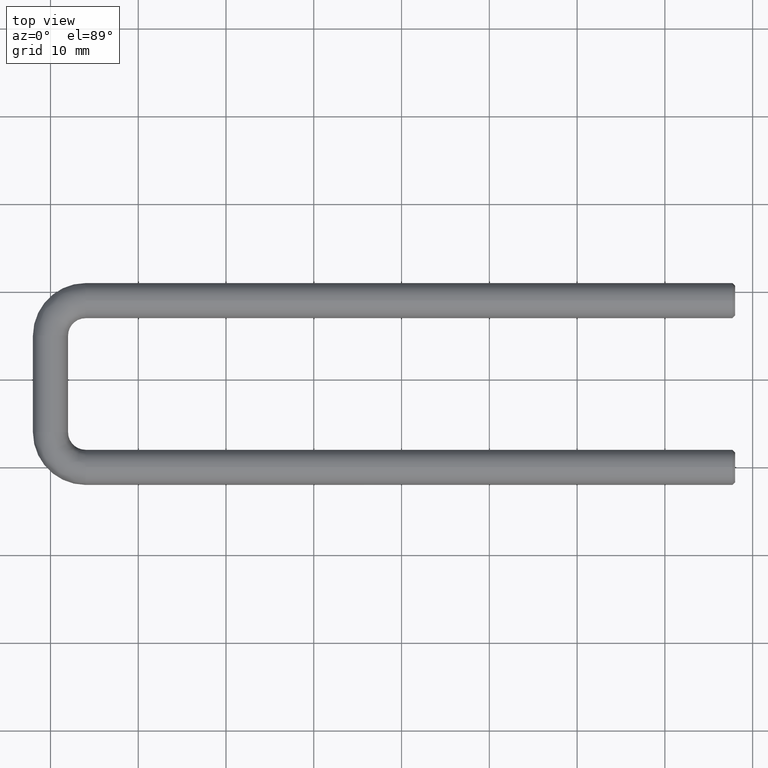
[diagram: clean part render]
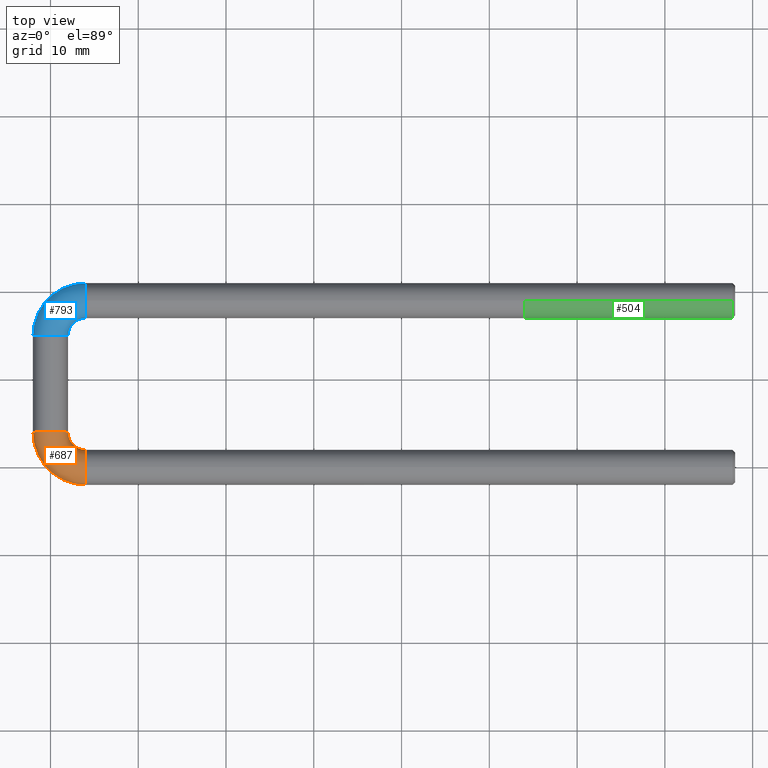
[diagram: same view with three faces highlighted in distinct colors, each labeled with its STEP entity id]
A machine part, top view with three faces highlighted in distinct colors.
Their STEP definitions:

[orange] entity #687 — the highlighted face is a freeform B-spline surface patch.
#1 = CARTESIAN_POINT ( 'NONE',  ( 4.000000000000000000, 1.266674852000000000, 2.000000000000000000 ) ) ;
#25 = CARTESIAN_POINT ( 'NONE',  ( 0.9148532999999999800, -1.266674851999999700, 2.000000000000000000 ) ) ;
#37 = CARTESIAN_POINT ( 'NONE',  ( -2.116464808999999600, 4.000000000000000000, 1.060679921000000200 ) ) ;
#41 = CARTESIAN_POINT ( 'NONE',  ( -2.116464808999999600, 0.4170578690000000800, 1.060679921000000200 ) ) ;
#47 = CARTESIAN_POINT ( 'NONE',  ( 0.4170578690000000800, -2.116464808999999600, 1.060679921000000200 ) ) ;
#51 = CARTESIAN_POINT ( 'NONE',  ( 3.999999999999999100, 3.999999999999999100, 2.592631739343659300E-009 ) ) ;
#53 = CARTESIAN_POINT ( 'NONE',  ( 2.116464808999999600, 2.896650629999999000, 1.060679921000000200 ) ) ;
#54 = CARTESIAN_POINT ( 'NONE',  ( 4.000000000000000000, -2.116464808999999600, 1.060679921000000200 ) ) ;
#55 = DIRECTION ( 'NONE',  ( 6.467319687690009700E-017, 6.467319687690009700E-017, -1.000000000000000000 ) ) ;
#56 = AXIS2_PLACEMENT_3D ( 'NONE', #69, #541, #789 ) ;
#62 = DIRECTION ( 'NONE',  ( -1.000000000000000000, 0.0000000000000000000, -6.467319678268286500E-017 ) ) ;
#66 = FACE_OUTER_BOUND ( 'NONE', #78, .T. ) ;
#69 = CARTESIAN_POINT ( 'NONE',  ( 0.0000000000000000000, 4.000000000000000000, 0.0000000000000000000 ) ) ;
#78 = EDGE_LOOP ( 'NONE', ( #266, #265, #274, #253, #173, #213 ) ) ;
#86 = VERTEX_POINT ( 'NONE', #422 ) ;
#93 = CARTESIAN_POINT ( 'NONE',  ( 0.4911343590000000800, -1.990008330999999900, -0.1996668330000000200 ) ) ;
#98 = CARTESIAN_POINT ( 'NONE',  ( 4.000000000000000000, -1.266674852000000000, 2.000000000000000000 ) ) ;
#100 = CARTESIAN_POINT ( 'NONE',  ( 2.449293598294706400E-016, 4.000000000000000000, 1.999999999999995300 ) ) ;
#102 = DIRECTION ( 'NONE',  ( -1.878093646019437100E-017, -1.878093646019437100E-017, 1.000000000000000000 ) ) ;
#103 = AXIS2_PLACEMENT_3D ( 'NONE', #51, #55, #62 ) ;
#138 = DIRECTION ( 'NONE',  ( -1.000000000000000000, -0.0000000000000000000, -0.0000000000000000000 ) ) ;
#150 = CARTESIAN_POINT ( 'NONE',  ( 1.266674851999999700, 2.398855198999998900, 2.000000000000000000 ) ) ;
#153 = CARTESIAN_POINT ( 'NONE',  ( -2.000000000099083400, 4.000000000000000000, 3.284779882328786500E-011 ) ) ;
#161 = VERTEX_POINT ( 'NONE', #465 ) ;
#171 = EDGE_CURVE ( 'NONE', #161, #86, #682, .T. ) ;
#173 = ORIENTED_EDGE ( 'NONE', *, *, #673, .T. ) ;
#183 = CARTESIAN_POINT ( 'NONE',  ( 1.990008331000000100, 4.000000000000000000, -0.1996668330000000400 ) ) ;
#196 = CARTESIAN_POINT ( 'NONE',  ( 0.0000000000000000000, 1.656854248999999800, 1.999999999999999800 ) ) ;
#213 = ORIENTED_EDGE ( 'NONE', *, *, #171, .T. ) ;
#240 = DIRECTION ( 'NONE',  ( 0.0000000000000000000, 8.881784197001252300E-016, -1.000000000000000000 ) ) ;
#245 = CARTESIAN_POINT ( 'NONE',  ( 0.0000000000000000000, 4.000000000000000000, 2.000000000000000000 ) ) ;
#253 = ORIENTED_EDGE ( 'NONE', *, *, #648, .T. ) ;
#265 = ORIENTED_EDGE ( 'NONE', *, *, #376, .T. ) ;
#266 = ORIENTED_EDGE ( 'NONE', *, *, #295, .T. ) ;
#274 = ORIENTED_EDGE ( 'NONE', *, *, #732, .T. ) ;
#278 = AXIS2_PLACEMENT_3D ( 'NONE', #403, #402, #547 ) ;
#290 = CARTESIAN_POINT ( 'NONE',  ( 4.000000000000000000, -1.990008331000000100, -0.1996668330000000400 ) ) ;
#295 = EDGE_CURVE ( 'NONE', #86, #438, #765, .T. ) ;
#306 = CARTESIAN_POINT ( 'NONE',  ( -1.266674852000000000, 4.000000000000000000, 2.000000000000000000 ) ) ;
#313 = CARTESIAN_POINT ( 'NONE',  ( -1.990008330999999900, 0.4911343590000000800, -0.1996668330000000200 ) ) ;
#325 = VERTEX_POINT ( 'NONE', #100 ) ;
#329 = CARTESIAN_POINT ( 'NONE',  ( -1.990008331000000100, 4.000000000000000000, -0.1996668330000000400 ) ) ;
#360 = DIRECTION ( 'NONE',  ( 1.000000000000000000, 0.0000000000000000000, 0.0000000000000000000 ) ) ;
#367 = DIRECTION ( 'NONE',  ( 0.0000000000000000000, -1.000000000000000000, 0.0000000000000000000 ) ) ;
#369 = CARTESIAN_POINT ( 'NONE',  ( 0.0000000000000000000, 4.000000000000000000, 0.0000000000000000000 ) ) ;
#376 = EDGE_CURVE ( 'NONE', #438, #325, #623, .T. ) ;
#398 = CARTESIAN_POINT ( 'NONE',  ( 1.656854248999999800, 0.0000000000000000000, 1.999999999999999800 ) ) ;
#402 = DIRECTION ( 'NONE',  ( -1.000000000000000000, -0.0000000000000000000, -0.0000000000000000000 ) ) ;
#403 = CARTESIAN_POINT ( 'NONE',  ( 3.999999999999996400, 0.0000000000000000000, 0.0000000000000000000 ) ) ;
#407 = CARTESIAN_POINT ( 'NONE',  ( 4.000000000000000000, 1.990008331000000100, -0.1996668330000000400 ) ) ;
#422 = CARTESIAN_POINT ( 'NONE',  ( 3.999999999999989800, 2.000000000000000000, 2.047254014255795300E-009 ) ) ;
#438 = VERTEX_POINT ( 'NONE', #734 ) ;
#442 = CARTESIAN_POINT ( 'NONE',  ( 2.398855198999998900, 1.266674851999999700, 2.000000000000000000 ) ) ;
#462 = CARTESIAN_POINT ( 'NONE',  ( 2.822574139999999500, 1.990008330999999900, -0.1996668330000000200 ) ) ;
#464 = CARTESIAN_POINT ( 'NONE',  ( 2.116464808999999600, 4.000000000000000000, 1.060679921000000200 ) ) ;
#465 = CARTESIAN_POINT ( 'NONE',  ( 3.999999999999996400, 0.0000000000000000000, 2.000000000000000000 ) ) ;
#491 = AXIS2_PLACEMENT_3D ( 'NONE', #369, #367, #360 ) ;
#510 = VERTEX_POINT ( 'NONE', #661 ) ;
#515 = VERTEX_POINT ( 'NONE', #153 ) ;
#521 = CARTESIAN_POINT ( 'NONE',  ( -1.266674851999999700, 0.9148532999999999800, 2.000000000000000000 ) ) ;
#527 = CARTESIAN_POINT ( 'NONE',  ( 3.999999999999996400, 0.0000000000000000000, 0.0000000000000000000 ) ) ;
#528 = CARTESIAN_POINT ( 'NONE',  ( 4.000000000000000000, 2.116464808999999600, 1.060679921000000200 ) ) ;
#541 = DIRECTION ( 'NONE',  ( 0.0000000000000000000, -1.000000000000000000, 0.0000000000000000000 ) ) ;
#542 = DIRECTION ( 'NONE',  ( 1.000000000000000000, 0.0000000000000000000, 1.878093648371326100E-017 ) ) ;
#547 = DIRECTION ( 'NONE',  ( 0.0000000000000000000, 8.881784197001252300E-016, -1.000000000000000000 ) ) ;
#596 = AXIS2_PLACEMENT_3D ( 'NONE', #527, #138, #240 ) ;
#599 = CIRCLE ( 'NONE', #56, 2.000000000000000000 ) ;
#611 = CIRCLE ( 'NONE', #647, 6.000000000396334500 ) ;
#623 = CIRCLE ( 'NONE', #491, 2.000000000000000000 ) ;
#647 = AXIS2_PLACEMENT_3D ( 'NONE', #747, #102, #542 ) ;
#648 = EDGE_CURVE ( 'NONE', #515, #510, #611, .T. ) ;
#656 = CARTESIAN_POINT ( 'NONE',  ( 4.000000000000000000, 0.0000000000000000000, 2.000000000000000000 ) ) ;
#660 =( BOUNDED_SURFACE ( )  B_SPLINE_SURFACE ( 3, 3, ( 
 ( #290, #93, #313, #329 ),
 ( #54, #47, #41, #37 ),
 ( #98, #25, #521, #306 ),
 ( #656, #398, #196, #245 ),
 ( #1, #442, #150, #752 ),
 ( #528, #820, #53, #464 ),
 ( #407, #462, #663, #183 ) ),
 .UNSPECIFIED., .F., .F., .F. ) 
 B_SPLINE_SURFACE_WITH_KNOTS ( ( 4, 3, 4 ),
 ( 4, 4 ),
 ( 0.0000000000000000000, 0.5000000000000000000, 1.000000000000000000 ),
 ( 0.0000000000000000000, 1.000000000000000000 ),
 .UNSPECIFIED. ) 
 GEOMETRIC_REPRESENTATION_ITEM ( )  RATIONAL_B_SPLINE_SURFACE ( (
 ( 1.000000000000000000, 0.8047378541243650500, 0.8047378541243650500, 1.000000000000000000),
 ( 0.7805883148851628900, 0.6281689654752399300, 0.6281689654752399300, 0.7805883148851628900),
 ( 0.7805883148851628900, 0.6281689654752399300, 0.6281689654752399300, 0.7805883148851628900),
 ( 1.000000000000000000, 0.8047378541243650500, 0.8047378541243650500, 1.000000000000000000),
 ( 0.7805883148851628900, 0.6281689654752399300, 0.6281689654752399300, 0.7805883148851628900),
 ( 0.7805883148851628900, 0.6281689654752399300, 0.6281689654752399300, 0.7805883148851628900),
 ( 1.000000000000000000, 0.8047378541243650500, 0.8047378541243650500, 1.000000000000000000) ) ) 
 REPRESENTATION_ITEM ( '' )  SURFACE ( )  );
#661 = CARTESIAN_POINT ( 'NONE',  ( 3.999999999999989800, -2.000000000000000000, 1.681234876209540000E-009 ) ) ;
#663 = CARTESIAN_POINT ( 'NONE',  ( 1.990008330999999900, 2.822574139999999500, -0.1996668330000000200 ) ) ;
#673 = EDGE_CURVE ( 'NONE', #510, #161, #691, .T. ) ;
#682 = CIRCLE ( 'NONE', #278, 2.000000000000000000 ) ;
#687 = ADVANCED_FACE ( 'NONE', ( #66 ), #660, .T. ) ;
#691 = CIRCLE ( 'NONE', #596, 2.000000000000000000 ) ;
#732 = EDGE_CURVE ( 'NONE', #325, #515, #599, .T. ) ;
#734 = CARTESIAN_POINT ( 'NONE',  ( 2.000000000099083000, 4.000000000000000000, 5.583642740705833200E-010 ) ) ;
#747 = CARTESIAN_POINT ( 'NONE',  ( 4.000000000000000000, 4.000000000000000000, 2.592632450162744400E-009 ) ) ;
#752 = CARTESIAN_POINT ( 'NONE',  ( 1.266674852000000000, 4.000000000000000000, 2.000000000000000000 ) ) ;
#765 = CIRCLE ( 'NONE', #103, 1.999999999603665900 ) ;
#789 = DIRECTION ( 'NONE',  ( 1.000000000000000000, 0.0000000000000000000, 0.0000000000000000000 ) ) ;
#820 = CARTESIAN_POINT ( 'NONE',  ( 2.896650629999999000, 2.116464808999999600, 1.060679921000000200 ) ) ;

[blue] entity #793 — the highlighted face is a freeform B-spline surface patch.
#10 = CARTESIAN_POINT ( 'NONE',  ( 2.896650629999999000, 16.88353519099999600, 1.060679921000000200 ) ) ;
#12 = CARTESIAN_POINT ( 'NONE',  ( 3.999999999999996400, 17.00000000000000000, 9.117408447827258500E-010 ) ) ;
#17 = ORIENTED_EDGE ( 'NONE', *, *, #215, .T. ) ;
#18 = EDGE_CURVE ( 'NONE', #175, #781, #352, .T. ) ;
#24 = CARTESIAN_POINT ( 'NONE',  ( 4.000000000000006200, 15.00000000000000400, 2.592632570024317900E-009 ) ) ;
#30 = DIRECTION ( 'NONE',  ( 1.162735962786628000E-016, -1.162735962786625800E-016, -1.000000000000000000 ) ) ;
#31 = CARTESIAN_POINT ( 'NONE',  ( 4.000000000000000000, 19.00000000000000000, 0.0000000000000000000 ) ) ;
#32 = DIRECTION ( 'NONE',  ( -1.000000000000000000, 0.0000000000000000000, -1.162735962249150200E-016 ) ) ;
#46 = CARTESIAN_POINT ( 'NONE',  ( 4.000000000000000000, 19.00000000000000000, 2.000000000000000000 ) ) ;
#49 = CARTESIAN_POINT ( 'NONE',  ( 4.000000000000000000, 21.11646480900000400, 1.060679921000000200 ) ) ;
#52 = CARTESIAN_POINT ( 'NONE',  ( 0.4911343589999999100, 20.99000833100000200, -0.1996668329999999900 ) ) ;
#59 = CARTESIAN_POINT ( 'NONE',  ( -1.266674852000000000, 14.99999999999999800, 2.000000000000000000 ) ) ;
#63 = CARTESIAN_POINT ( 'NONE',  ( 2.398855198999998400, 17.73332514800000200, 2.000000000000000000 ) ) ;
#64 = AXIS2_PLACEMENT_3D ( 'NONE', #24, #30, #32 ) ;
#67 = CARTESIAN_POINT ( 'NONE',  ( 2.449293598294709900E-016, 15.00000000000000000, 2.000000000000000000 ) ) ;
#90 = CIRCLE ( 'NONE', #64, 1.999999999603671300 ) ;
#104 = CARTESIAN_POINT ( 'NONE',  ( 2.000000000198167300, 15.00000000000000000, 1.116728850648756700E-009 ) ) ;
#113 = DIRECTION ( 'NONE',  ( 2.727674553461913100E-017, -2.727674553461913100E-017, 1.000000000000000000 ) ) ;
#116 = CARTESIAN_POINT ( 'NONE',  ( 4.000000000000000000, 19.00000000000000000, 2.000000000000000000 ) ) ;
#125 = CARTESIAN_POINT ( 'NONE',  ( 4.000000000000000000, 16.88353519099999600, 1.060679921000000200 ) ) ;
#175 = VERTEX_POINT ( 'NONE', #431 ) ;
#182 = ORIENTED_EDGE ( 'NONE', *, *, #310, .T. ) ;
#189 = CARTESIAN_POINT ( 'NONE',  ( 4.000000000000000000, 20.99000833099999900, -0.1996668330000000400 ) ) ;
#215 = EDGE_CURVE ( 'NONE', #751, #268, #780, .T. ) ;
#218 = CARTESIAN_POINT ( 'NONE',  ( 0.4170578690000000800, 21.11646480900000400, 1.060679921000000200 ) ) ;
#235 = CARTESIAN_POINT ( 'NONE',  ( -2.116464809000000000, 14.99999999999999800, 1.060679921000000200 ) ) ;
#239 = CARTESIAN_POINT ( 'NONE',  ( 1.266674852000000000, 15.00000000000000000, 2.000000000000000000 ) ) ;
#268 = VERTEX_POINT ( 'NONE', #46 ) ;
#270 = EDGE_LOOP ( 'NONE', ( #792, #17, #288, #562, #683, #182 ) ) ;
#286 = CARTESIAN_POINT ( 'NONE',  ( -1.990008331000000100, 15.00000000000000000, -0.1996668330000000400 ) ) ;
#287 = CARTESIAN_POINT ( 'NONE',  ( 4.000000000000000000, 20.26667485199999400, 2.000000000000000000 ) ) ;
#288 = ORIENTED_EDGE ( 'NONE', *, *, #467, .T. ) ;
#289 = EDGE_CURVE ( 'NONE', #662, #751, #90, .T. ) ;
#291 = CARTESIAN_POINT ( 'NONE',  ( 1.656854249000000000, 19.00000000000000000, 2.000000000000000000 ) ) ;
#301 = AXIS2_PLACEMENT_3D ( 'NONE', #497, #494, #490 ) ;
#310 = EDGE_CURVE ( 'NONE', #781, #662, #786, .T. ) ;
#345 = CARTESIAN_POINT ( 'NONE',  ( 0.9148532999999998700, 20.26667485199999800, 2.000000000000000000 ) ) ;
#352 = CIRCLE ( 'NONE', #526, 2.000000000000000000 ) ;
#355 = VERTEX_POINT ( 'NONE', #453 ) ;
#356 = CARTESIAN_POINT ( 'NONE',  ( 2.822574140000000400, 17.00999166900000900, -0.1996668329999999900 ) ) ;
#359 = CARTESIAN_POINT ( 'NONE',  ( 4.000000000000000000, 17.00999166900000500, -0.1996668330000000400 ) ) ;
#409 = CARTESIAN_POINT ( 'NONE',  ( 1.266674852000000000, 16.60114480100000000, 2.000000000000000000 ) ) ;
#410 = CARTESIAN_POINT ( 'NONE',  ( 2.116464808999999600, 15.00000000000000000, 1.060679921000000200 ) ) ;
#423 = DIRECTION ( 'NONE',  ( -1.000000000000000000, 0.0000000000000000000, 0.0000000000000000000 ) ) ;
#431 = CARTESIAN_POINT ( 'NONE',  ( -2.000000000000000000, 14.99999999999999800, 8.861088314299350400E-010 ) ) ;
#433 = AXIS2_PLACEMENT_3D ( 'NONE', #31, #423, #707 ) ;
#443 =( BOUNDED_SURFACE ( )  B_SPLINE_SURFACE ( 3, 3, ( 
 ( #359, #356, #538, #536 ),
 ( #125, #10, #616, #410 ),
 ( #640, #63, #409, #239 ),
 ( #116, #291, #756, #535 ),
 ( #287, #345, #592, #59 ),
 ( #49, #218, #824, #235 ),
 ( #189, #52, #454, #286 ) ),
 .UNSPECIFIED., .F., .F., .T. ) 
 B_SPLINE_SURFACE_WITH_KNOTS ( ( 4, 3, 4 ),
 ( 4, 4 ),
 ( 0.0000000000000000000, 0.5000000000000000000, 1.000000000000000000 ),
 ( 0.0000000000000000000, 1.000000000000000000 ),
 .UNSPECIFIED. ) 
 GEOMETRIC_REPRESENTATION_ITEM ( )  RATIONAL_B_SPLINE_SURFACE ( (
 ( 1.000000000000000000, 0.8047378541243640500, 0.8047378541243640500, 1.000000000000000000),
 ( 0.7805883148851628900, 0.6281689654752389300, 0.6281689654752389300, 0.7805883148851628900),
 ( 0.7805883148851628900, 0.6281689654752389300, 0.6281689654752389300, 0.7805883148851628900),
 ( 1.000000000000000000, 0.8047378541243640500, 0.8047378541243640500, 1.000000000000000000),
 ( 0.7805883148851618900, 0.6281689654752389300, 0.6281689654752389300, 0.7805883148851618900),
 ( 0.7805883148851618900, 0.6281689654752389300, 0.6281689654752389300, 0.7805883148851618900),
 ( 1.000000000000000000, 0.8047378541243640500, 0.8047378541243640500, 1.000000000000000000) ) ) 
 REPRESENTATION_ITEM ( '' )  SURFACE ( )  );
#453 = CARTESIAN_POINT ( 'NONE',  ( 3.999999999999996400, 20.99999999999999600, 1.739484485162024900E-009 ) ) ;
#454 = CARTESIAN_POINT ( 'NONE',  ( -1.990008330999999900, 18.50886564100000300, -0.1996668329999999900 ) ) ;
#467 = EDGE_CURVE ( 'NONE', #268, #355, #568, .T. ) ;
#468 = CARTESIAN_POINT ( 'NONE',  ( 3.999999999999988000, 14.99999999999999600, 2.592631213260721800E-009 ) ) ;
#490 = DIRECTION ( 'NONE',  ( 0.0000000000000000000, 0.0000000000000000000, -1.000000000000000000 ) ) ;
#494 = DIRECTION ( 'NONE',  ( 0.0000000000000000000, 1.000000000000000000, 4.336808689942017700E-016 ) ) ;
#497 = CARTESIAN_POINT ( 'NONE',  ( 0.0000000000000000000, 15.00000000000000000, -1.543026697945950100E-040 ) ) ;
#525 = DIRECTION ( 'NONE',  ( 1.000000000000000000, 0.0000000000000000000, -2.727674551501598000E-017 ) ) ;
#526 = AXIS2_PLACEMENT_3D ( 'NONE', #565, #688, #643 ) ;
#535 = CARTESIAN_POINT ( 'NONE',  ( 0.0000000000000000000, 15.00000000000000000, 2.000000000000000000 ) ) ;
#536 = CARTESIAN_POINT ( 'NONE',  ( 1.990008331000000100, 15.00000000000000000, -0.1996668330000000400 ) ) ;
#538 = CARTESIAN_POINT ( 'NONE',  ( 1.990008330999999900, 16.17742586000000300, -0.1996668329999999900 ) ) ;
#562 = ORIENTED_EDGE ( 'NONE', *, *, #698, .T. ) ;
#565 = CARTESIAN_POINT ( 'NONE',  ( 0.0000000000000000000, 15.00000000000000000, -1.543026697945950100E-040 ) ) ;
#568 = CIRCLE ( 'NONE', #818, 2.000000000000000000 ) ;
#577 = FACE_OUTER_BOUND ( 'NONE', #270, .T. ) ;
#592 = CARTESIAN_POINT ( 'NONE',  ( -1.266674852000000000, 18.08514669999999600, 2.000000000000000000 ) ) ;
#601 = CIRCLE ( 'NONE', #798, 6.000000000396327400 ) ;
#616 = CARTESIAN_POINT ( 'NONE',  ( 2.116464808999999600, 16.10334936999999700, 1.060679921000000200 ) ) ;
#640 = CARTESIAN_POINT ( 'NONE',  ( 4.000000000000000000, 17.73332514800000200, 2.000000000000000000 ) ) ;
#643 = DIRECTION ( 'NONE',  ( 0.0000000000000000000, 0.0000000000000000000, -1.000000000000000000 ) ) ;
#650 = DIRECTION ( 'NONE',  ( 0.0000000000000000000, 0.0000000000000000000, 1.000000000000000000 ) ) ;
#651 = DIRECTION ( 'NONE',  ( -1.000000000000000000, 0.0000000000000000000, 0.0000000000000000000 ) ) ;
#658 = CARTESIAN_POINT ( 'NONE',  ( 4.000000000000000000, 19.00000000000000000, 0.0000000000000000000 ) ) ;
#662 = VERTEX_POINT ( 'NONE', #104 ) ;
#683 = ORIENTED_EDGE ( 'NONE', *, *, #18, .T. ) ;
#688 = DIRECTION ( 'NONE',  ( 0.0000000000000000000, 1.000000000000000000, 4.336808689942017700E-016 ) ) ;
#698 = EDGE_CURVE ( 'NONE', #355, #175, #601, .T. ) ;
#707 = DIRECTION ( 'NONE',  ( 0.0000000000000000000, 0.0000000000000000000, 1.000000000000000000 ) ) ;
#751 = VERTEX_POINT ( 'NONE', #12 ) ;
#756 = CARTESIAN_POINT ( 'NONE',  ( 0.0000000000000000000, 17.34314575100000200, 2.000000000000000000 ) ) ;
#780 = CIRCLE ( 'NONE', #433, 2.000000000000000000 ) ;
#781 = VERTEX_POINT ( 'NONE', #67 ) ;
#786 = CIRCLE ( 'NONE', #301, 2.000000000000000000 ) ;
#792 = ORIENTED_EDGE ( 'NONE', *, *, #289, .T. ) ;
#793 = ADVANCED_FACE ( 'NONE', ( #577 ), #443, .T. ) ;
#798 = AXIS2_PLACEMENT_3D ( 'NONE', #468, #113, #525 ) ;
#818 = AXIS2_PLACEMENT_3D ( 'NONE', #658, #651, #650 ) ;
#824 = CARTESIAN_POINT ( 'NONE',  ( -2.116464808999999600, 18.58294213099999900, 1.060679921000000200 ) ) ;

[green] entity #504 — the highlighted cylindrical surface (edge-blend (fillet) strip) has radius 2 mm, axis along (-1, -0, -0).
#2 = CARTESIAN_POINT ( 'NONE',  ( 77.70000000000192100, 19.00000000000000000, 2.000000000000000400 ) ) ;
#43 = ORIENTED_EDGE ( 'NONE', *, *, #50, .T. ) ;
#50 = EDGE_CURVE ( 'NONE', #361, #244, #530, .T. ) ;
#57 = DIRECTION ( 'NONE',  ( -1.000000000000000000, -0.0000000000000000000, -0.0000000000000000000 ) ) ;
#60 = CARTESIAN_POINT ( 'NONE',  ( 77.99999999999998600, 19.00000000000000000, -2.000000000000000400 ) ) ;
#75 = AXIS2_PLACEMENT_3D ( 'NONE', #757, #670, #699 ) ;
#108 = AXIS2_PLACEMENT_3D ( 'NONE', #675, #664, #644 ) ;
#198 = ORIENTED_EDGE ( 'NONE', *, *, #799, .T. ) ;
#244 = VERTEX_POINT ( 'NONE', #384 ) ;
#361 = VERTEX_POINT ( 'NONE', #817 ) ;
#372 = VERTEX_POINT ( 'NONE', #405 ) ;
#384 = CARTESIAN_POINT ( 'NONE',  ( 53.99999999999999300, 19.00000000000000000, -2.000000000000000400 ) ) ;
#405 = CARTESIAN_POINT ( 'NONE',  ( 77.70000000000192100, 19.00000000000000000, -2.000000000000000400 ) ) ;
#427 = DIRECTION ( 'NONE',  ( 0.0000000000000000000, 0.0000000000000000000, -1.000000000000000000 ) ) ;
#430 = DIRECTION ( 'NONE',  ( 1.000000000000000000, 0.0000000000000000000, 0.0000000000000000000 ) ) ;
#436 = CARTESIAN_POINT ( 'NONE',  ( 53.99999999999999300, 19.00000000000000000, 0.0000000000000000000 ) ) ;
#439 = EDGE_LOOP ( 'NONE', ( #645, #617, #198, #43 ) ) ;
#474 = CARTESIAN_POINT ( 'NONE',  ( 77.99999999999998600, 19.00000000000000000, 2.000000000000000400 ) ) ;
#504 = ADVANCED_FACE ( 'NONE', ( #742 ), #738, .T. ) ;
#506 = EDGE_CURVE ( 'NONE', #372, #559, #741, .T. ) ;
#530 = CIRCLE ( 'NONE', #725, 2.000000000000000400 ) ;
#537 = EDGE_CURVE ( 'NONE', #372, #244, #788, .T. ) ;
#559 = VERTEX_POINT ( 'NONE', #2 ) ;
#567 = LINE ( 'NONE', #474, #584 ) ;
#584 = VECTOR ( 'NONE', #591, 1000.000000000000000 ) ;
#591 = DIRECTION ( 'NONE',  ( -1.000000000000000000, -0.0000000000000000000, -0.0000000000000000000 ) ) ;
#617 = ORIENTED_EDGE ( 'NONE', *, *, #506, .T. ) ;
#644 = DIRECTION ( 'NONE',  ( 0.0000000000000000000, 0.0000000000000000000, 1.000000000000000000 ) ) ;
#645 = ORIENTED_EDGE ( 'NONE', *, *, #537, .F. ) ;
#664 = DIRECTION ( 'NONE',  ( -1.000000000000000000, -0.0000000000000000000, -0.0000000000000000000 ) ) ;
#670 = DIRECTION ( 'NONE',  ( -1.000000000000000000, 0.0000000000000000000, 0.0000000000000000000 ) ) ;
#675 = CARTESIAN_POINT ( 'NONE',  ( 77.99999999999998600, 19.00000000000000000, 0.0000000000000000000 ) ) ;
#699 = DIRECTION ( 'NONE',  ( 0.0000000000000000000, 0.0000000000000000000, -1.000000000000000000 ) ) ;
#716 = VECTOR ( 'NONE', #57, 1000.000000000000000 ) ;
#725 = AXIS2_PLACEMENT_3D ( 'NONE', #436, #430, #427 ) ;
#738 = CYLINDRICAL_SURFACE ( 'NONE', #108, 2.000000000000000400 ) ;
#741 = CIRCLE ( 'NONE', #75, 2.000000000000000400 ) ;
#742 = FACE_OUTER_BOUND ( 'NONE', #439, .T. ) ;
#757 = CARTESIAN_POINT ( 'NONE',  ( 77.70000000000192100, 19.00000000000000000, 0.0000000000000000000 ) ) ;
#788 = LINE ( 'NONE', #60, #716 ) ;
#799 = EDGE_CURVE ( 'NONE', #559, #361, #567, .T. ) ;
#817 = CARTESIAN_POINT ( 'NONE',  ( 53.99999999999999300, 19.00000000000000000, 2.000000000000000400 ) ) ;